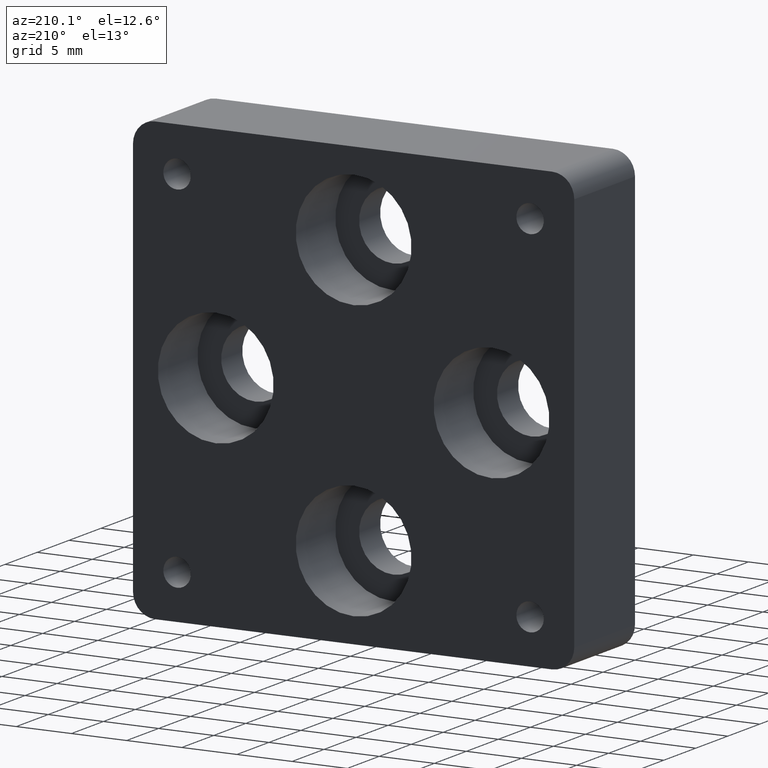
[diagram: clean part render]
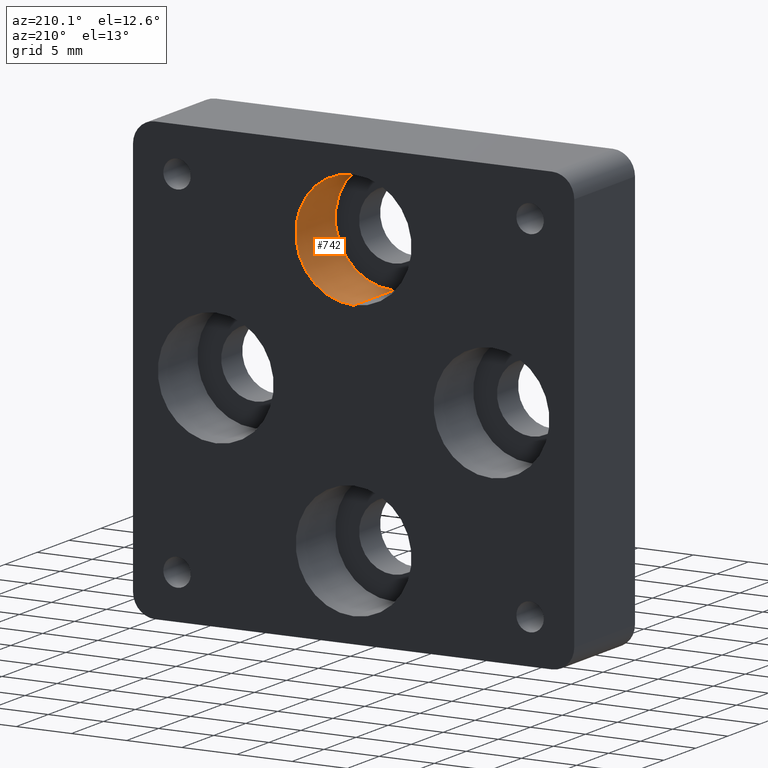
[diagram: same view with one face highlighted and labeled with its STEP entity id]
A machine part, auxiliary view. The second image highlights one B-rep face of the part: STEP entity #742.
In plain terms, the highlighted cylindrical surface (partial cylindrical patch) has radius 5.25 mm, axis along (0, 1, 0).
Its self-contained STEP definition (entity closure, byte-faithful):
#14 = VERTEX_POINT ( 'NONE', #776 ) ;
#30 = CIRCLE ( 'NONE', #753, 5.250000000000000888 ) ;
#46 = CARTESIAN_POINT ( 'NONE',  ( 0.000000000000000000, 3.299999999999999822, 17.75000000000000355 ) ) ;
#54 = LINE ( 'NONE', #364, #177 ) ;
#63 = LINE ( 'NONE', #252, #775 ) ;
#115 = AXIS2_PLACEMENT_3D ( 'NONE', #278, #182, #471 ) ;
#135 = CARTESIAN_POINT ( 'NONE',  ( 6.429395695523604153E-16, 9.500000000000000000, 7.250000000000000000 ) ) ;
#139 = DIRECTION ( 'NONE',  ( 0.000000000000000000, 1.000000000000000000, 0.000000000000000000 ) ) ;
#146 = CARTESIAN_POINT ( 'NONE',  ( 0.000000000000000000, 3.299999999999999822, 12.50000000000000000 ) ) ;
#168 = EDGE_CURVE ( 'NONE', #196, #665, #30, .T. ) ;
#177 = VECTOR ( 'NONE', #1269, 1000.000000000000000 ) ;
#182 = DIRECTION ( 'NONE',  ( 0.000000000000000000, 1.000000000000000000, 0.000000000000000000 ) ) ;
#196 = VERTEX_POINT ( 'NONE', #46 ) ;
#215 = EDGE_CURVE ( 'NONE', #196, #14, #54, .T. ) ;
#252 = CARTESIAN_POINT ( 'NONE',  ( 6.429395695523604153E-16, 3.299999999999999822, 7.250000000000000000 ) ) ;
#274 = EDGE_CURVE ( 'NONE', #665, #1209, #63, .T. ) ;
#278 = CARTESIAN_POINT ( 'NONE',  ( 0.000000000000000000, 9.500000000000000000, 12.50000000000000000 ) ) ;
#298 = FACE_OUTER_BOUND ( 'NONE', #496, .T. ) ;
#364 = CARTESIAN_POINT ( 'NONE',  ( 0.000000000000000000, 3.299999999999999822, 17.75000000000000355 ) ) ;
#410 = DIRECTION ( 'NONE',  ( 0.000000000000000000, 0.000000000000000000, 1.000000000000000000 ) ) ;
#448 = DIRECTION ( 'NONE',  ( 0.000000000000000000, 1.000000000000000000, 0.000000000000000000 ) ) ;
#471 = DIRECTION ( 'NONE',  ( 0.000000000000000000, 0.000000000000000000, 1.000000000000000000 ) ) ;
#482 = ORIENTED_EDGE ( 'NONE', *, *, #215, .T. ) ;
#496 = EDGE_LOOP ( 'NONE', ( #829, #558, #482, #671 ) ) ;
#558 = ORIENTED_EDGE ( 'NONE', *, *, #168, .F. ) ;
#620 = DIRECTION ( 'NONE',  ( 0.000000000000000000, 1.000000000000000000, 0.000000000000000000 ) ) ;
#665 = VERTEX_POINT ( 'NONE', #1001 ) ;
#671 = ORIENTED_EDGE ( 'NONE', *, *, #706, .T. ) ;
#690 = CYLINDRICAL_SURFACE ( 'NONE', #1228, 5.250000000000000888 ) ;
#706 = EDGE_CURVE ( 'NONE', #14, #1209, #1047, .T. ) ;
#709 = CARTESIAN_POINT ( 'NONE',  ( 0.000000000000000000, 3.299999999999999822, 12.50000000000000000 ) ) ;
#742 = ADVANCED_FACE ( 'NONE', ( #298 ), #690, .F. ) ;
#753 = AXIS2_PLACEMENT_3D ( 'NONE', #146, #620, #821 ) ;
#775 = VECTOR ( 'NONE', #448, 1000.000000000000000 ) ;
#776 = CARTESIAN_POINT ( 'NONE',  ( 0.000000000000000000, 9.500000000000000000, 17.75000000000000355 ) ) ;
#821 = DIRECTION ( 'NONE',  ( 0.000000000000000000, 0.000000000000000000, 1.000000000000000000 ) ) ;
#829 = ORIENTED_EDGE ( 'NONE', *, *, #274, .F. ) ;
#1001 = CARTESIAN_POINT ( 'NONE',  ( 6.429395695523604153E-16, 3.299999999999999822, 7.250000000000000000 ) ) ;
#1047 = CIRCLE ( 'NONE', #115, 5.250000000000000888 ) ;
#1209 = VERTEX_POINT ( 'NONE', #135 ) ;
#1228 = AXIS2_PLACEMENT_3D ( 'NONE', #709, #139, #410 ) ;
#1269 = DIRECTION ( 'NONE',  ( 0.000000000000000000, 1.000000000000000000, 0.000000000000000000 ) ) ;